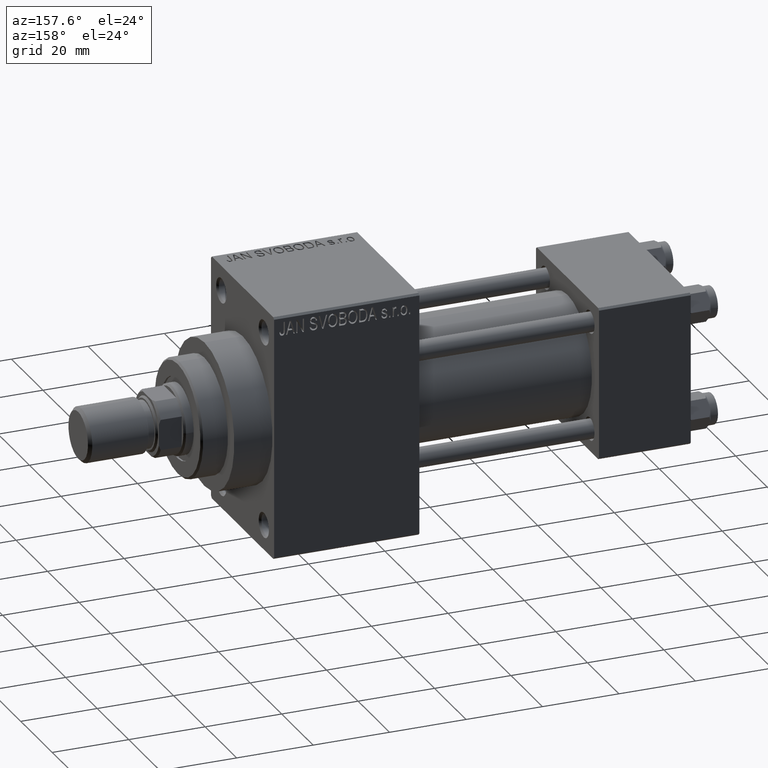
[diagram: clean part render]
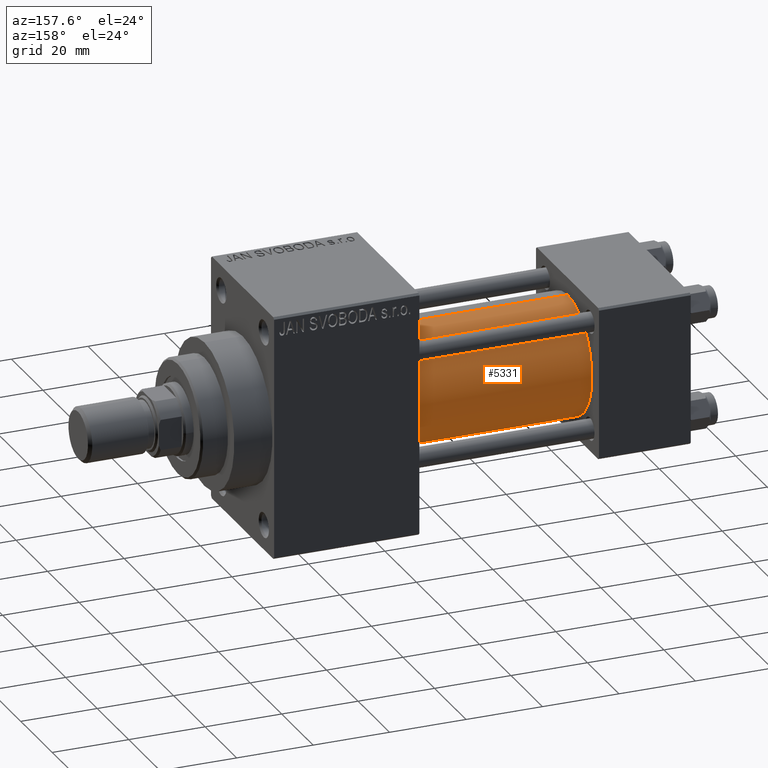
[diagram: same view with one face highlighted and labeled with its STEP entity id]
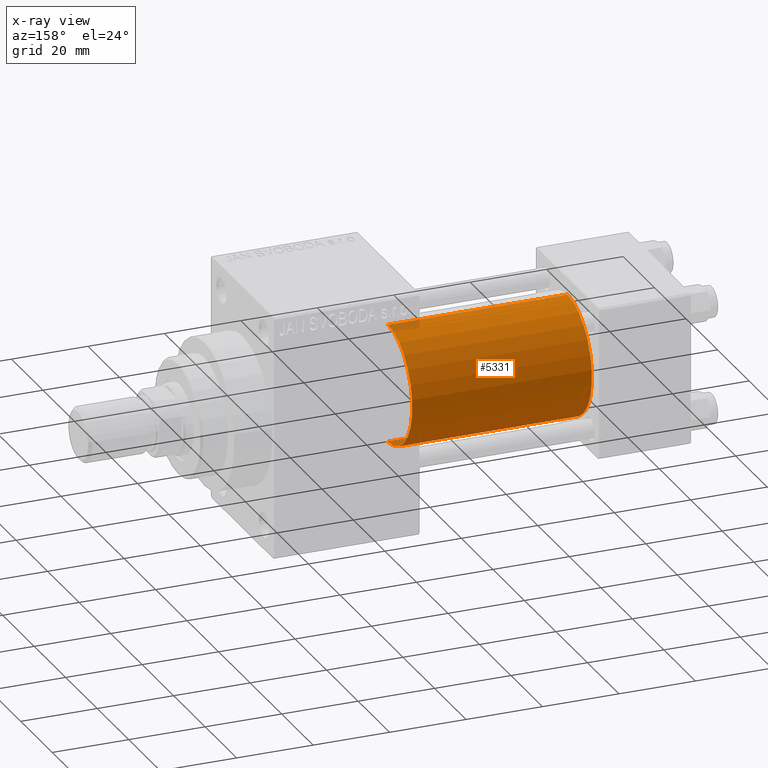
[diagram: x-ray of the same camera — body ghosted, the highlighted face saturated]
A machine part, auxiliary view. The second image highlights one B-rep face of the part: STEP entity #5331.
The next image is the same camera in x-ray: the body ghosted, the highlighted face saturated — about 1% of this face is hidden behind the body in this view.
In plain terms, the highlighted cylindrical surface (partial cylindrical patch) has radius 15.5 mm, axis along (-1, -0, -0).
Its self-contained STEP definition (entity closure, byte-faithful):
#687 = CARTESIAN_POINT ( 'NONE',  ( 24.00000000000000000, -7.038826752868131828E-16, -15.50000000000000000 ) ) ;
#3605 = DIRECTION ( 'NONE',  ( 0.000000000000000000, 0.000000000000000000, 1.000000000000000000 ) ) ;
#5331 = ADVANCED_FACE ( 'NONE', ( #12654 ), #16975, .T. ) ;
#7665 = CARTESIAN_POINT ( 'NONE',  ( 71.00000000000001421, -2.602085213965210642E-15, 15.50000000000000000 ) ) ;
#9024 = VECTOR ( 'NONE', #14663, 1000.000000000000000 ) ;
#10075 = CARTESIAN_POINT ( 'NONE',  ( 71.00000000000001421, -7.038826752868131828E-16, -15.50000000000000000 ) ) ;
#12654 = FACE_OUTER_BOUND ( 'NONE', #19515, .T. ) ;
#13365 = DIRECTION ( 'NONE',  ( 0.000000000000000000, 0.000000000000000000, 1.000000000000000000 ) ) ;
#14663 = DIRECTION ( 'NONE',  ( -1.000000000000000000, -0.000000000000000000, -0.000000000000000000 ) ) ;
#15492 = VERTEX_POINT ( 'NONE', #25812 ) ;
#15606 = CARTESIAN_POINT ( 'NONE',  ( 24.00000000000000000, -2.602085213965210642E-15, 0.000000000000000000 ) ) ;
#16007 = VERTEX_POINT ( 'NONE', #10075 ) ;
#16975 = CYLINDRICAL_SURFACE ( 'NONE', #43841, 15.50000000000000000 ) ;
#17780 = CARTESIAN_POINT ( 'NONE',  ( 71.00000000000001421, -7.038826752868131828E-16, -15.50000000000000000 ) ) ;
#18002 = CARTESIAN_POINT ( 'NONE',  ( 71.00000000000001421, -2.602085213965210642E-15, 0.000000000000000000 ) ) ;
#18490 = DIRECTION ( 'NONE',  ( 0.000000000000000000, 0.000000000000000000, -1.000000000000000000 ) ) ;
#19515 = EDGE_LOOP ( 'NONE', ( #25754, #39663, #33333, #24296 ) ) ;
#19713 = VECTOR ( 'NONE', #35713, 1000.000000000000000 ) ;
#20847 = CARTESIAN_POINT ( 'NONE',  ( 71.00000000000001421, -2.602085213965210642E-15, 15.50000000000000000 ) ) ;
#22706 = AXIS2_PLACEMENT_3D ( 'NONE', #18002, #29528, #18490 ) ;
#24296 = ORIENTED_EDGE ( 'NONE', *, *, #46112, .F. ) ;
#25754 = ORIENTED_EDGE ( 'NONE', *, *, #42249, .F. ) ;
#25812 = CARTESIAN_POINT ( 'NONE',  ( 24.00000000000000000, -2.602085213965210642E-15, 15.50000000000000000 ) ) ;
#26276 = EDGE_CURVE ( 'NONE', #16007, #27534, #36498, .T. ) ;
#26412 = DIRECTION ( 'NONE',  ( -1.000000000000000000, -0.000000000000000000, -0.000000000000000000 ) ) ;
#26682 = AXIS2_PLACEMENT_3D ( 'NONE', #15606, #36494, #3605 ) ;
#27534 = VERTEX_POINT ( 'NONE', #687 ) ;
#29528 = DIRECTION ( 'NONE',  ( 1.000000000000000000, 0.000000000000000000, 0.000000000000000000 ) ) ;
#30522 = CIRCLE ( 'NONE', #26682, 15.50000000000000000 ) ;
#31612 = CARTESIAN_POINT ( 'NONE',  ( 71.00000000000001421, -2.602085213965210642E-15, 0.000000000000000000 ) ) ;
#33333 = ORIENTED_EDGE ( 'NONE', *, *, #47126, .T. ) ;
#34362 = LINE ( 'NONE', #20847, #19713 ) ;
#35713 = DIRECTION ( 'NONE',  ( -1.000000000000000000, -0.000000000000000000, -0.000000000000000000 ) ) ;
#36494 = DIRECTION ( 'NONE',  ( 1.000000000000000000, 0.000000000000000000, 0.000000000000000000 ) ) ;
#36498 = LINE ( 'NONE', #17780, #9024 ) ;
#39663 = ORIENTED_EDGE ( 'NONE', *, *, #26276, .T. ) ;
#42209 = VERTEX_POINT ( 'NONE', #7665 ) ;
#42249 = EDGE_CURVE ( 'NONE', #16007, #42209, #42614, .T. ) ;
#42614 = CIRCLE ( 'NONE', #22706, 15.50000000000000000 ) ;
#43841 = AXIS2_PLACEMENT_3D ( 'NONE', #31612, #26412, #13365 ) ;
#46112 = EDGE_CURVE ( 'NONE', #42209, #15492, #34362, .T. ) ;
#47126 = EDGE_CURVE ( 'NONE', #27534, #15492, #30522, .T. ) ;